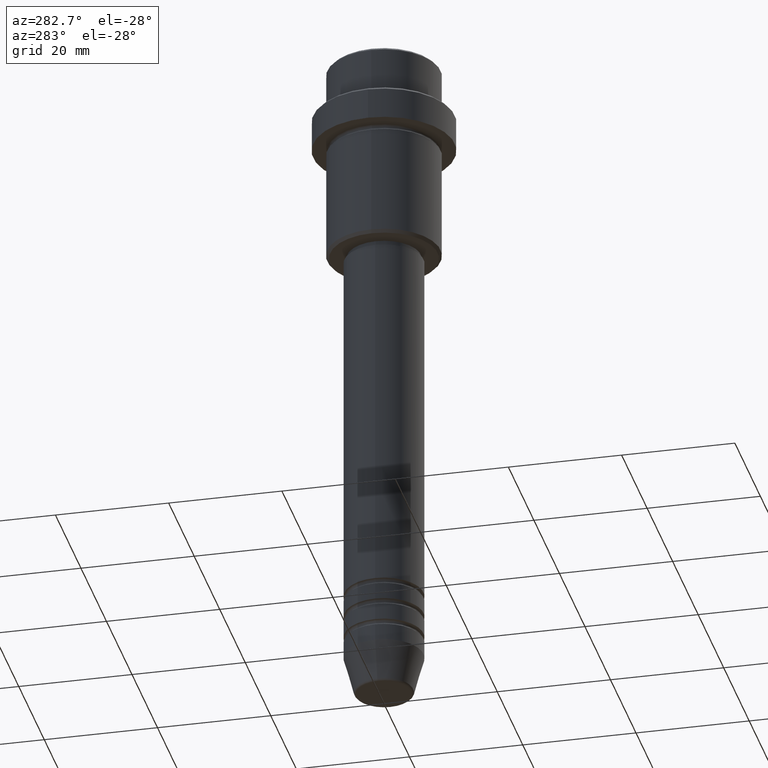
[diagram: clean part render]
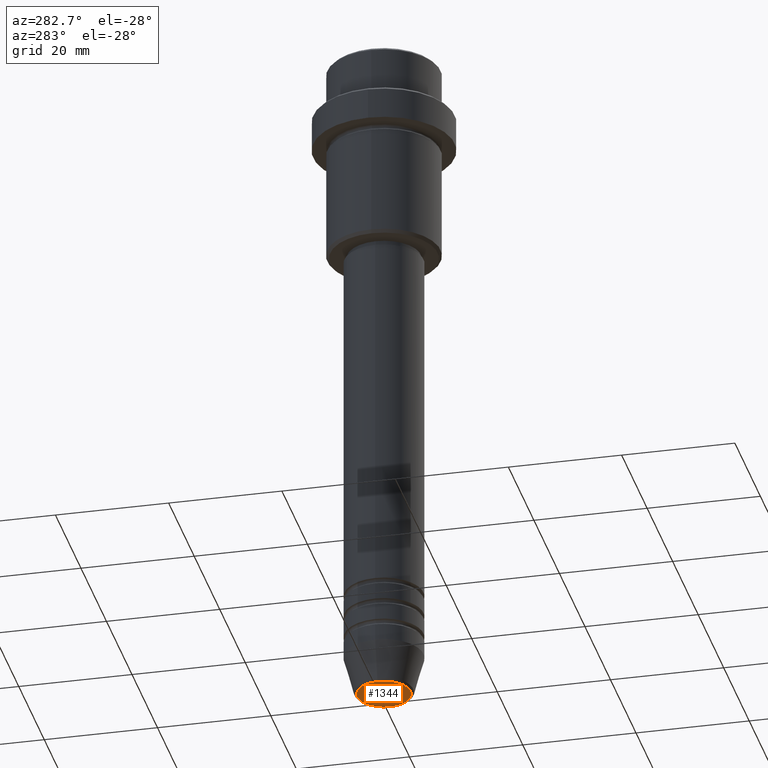
[diagram: same view with one face highlighted and labeled with its STEP entity id]
A machine part, auxiliary view. The second image highlights one B-rep face of the part: STEP entity #1344.
In plain terms, the highlighted planar face has unit normal (0, -0, 1).
Its self-contained STEP definition (entity closure, byte-faithful):
#124 = AXIS2_PLACEMENT_3D ( 'NONE', #862, #958, #750 ) ;
#205 = FACE_OUTER_BOUND ( 'NONE', #1378, .T. ) ;
#211 = PLANE ( 'NONE',  #1054 ) ;
#303 = CARTESIAN_POINT ( 'NONE',  ( 0.000000000000000000, 0.000000000000000000, -121.0000000000000000 ) ) ;
#356 = AXIS2_PLACEMENT_3D ( 'NONE', #303, #517, #947 ) ;
#517 = DIRECTION ( 'NONE',  ( 0.000000000000000000, 0.000000000000000000, -1.000000000000000000 ) ) ;
#523 = EDGE_CURVE ( 'NONE', #797, #820, #734, .T. ) ;
#545 = DIRECTION ( 'NONE',  ( 1.000000000000000000, 0.000000000000000000, 0.000000000000000000 ) ) ;
#617 = CARTESIAN_POINT ( 'NONE',  ( -4.740692158992659166, 6.101402971097984690E-16, -121.0000000000000000 ) ) ;
#734 = CIRCLE ( 'NONE', #124, 4.740692158992659166 ) ;
#750 = DIRECTION ( 'NONE',  ( 1.000000000000000000, 0.000000000000000000, 0.000000000000000000 ) ) ;
#797 = VERTEX_POINT ( 'NONE', #852 ) ;
#820 = VERTEX_POINT ( 'NONE', #617 ) ;
#852 = CARTESIAN_POINT ( 'NONE',  ( 4.740692158992659166, 0.000000000000000000, -121.0000000000000000 ) ) ;
#862 = CARTESIAN_POINT ( 'NONE',  ( 0.000000000000000000, 0.000000000000000000, -121.0000000000000000 ) ) ;
#947 = DIRECTION ( 'NONE',  ( 1.000000000000000000, 0.000000000000000000, 0.000000000000000000 ) ) ;
#958 = DIRECTION ( 'NONE',  ( 0.000000000000000000, 0.000000000000000000, -1.000000000000000000 ) ) ;
#1039 = ORIENTED_EDGE ( 'NONE', *, *, #1256, .T. ) ;
#1054 = AXIS2_PLACEMENT_3D ( 'NONE', #1388, #1406, #545 ) ;
#1146 = CIRCLE ( 'NONE', #356, 4.740692158992659166 ) ;
#1256 = EDGE_CURVE ( 'NONE', #820, #797, #1146, .T. ) ;
#1322 = ORIENTED_EDGE ( 'NONE', *, *, #523, .T. ) ;
#1344 = ADVANCED_FACE ( 'NONE', ( #205 ), #211, .F. ) ;
#1378 = EDGE_LOOP ( 'NONE', ( #1322, #1039 ) ) ;
#1388 = CARTESIAN_POINT ( 'NONE',  ( 0.000000000000000000, 0.000000000000000000, -121.0000000000000000 ) ) ;
#1406 = DIRECTION ( 'NONE',  ( 0.000000000000000000, -0.000000000000000000, 1.000000000000000000 ) ) ;